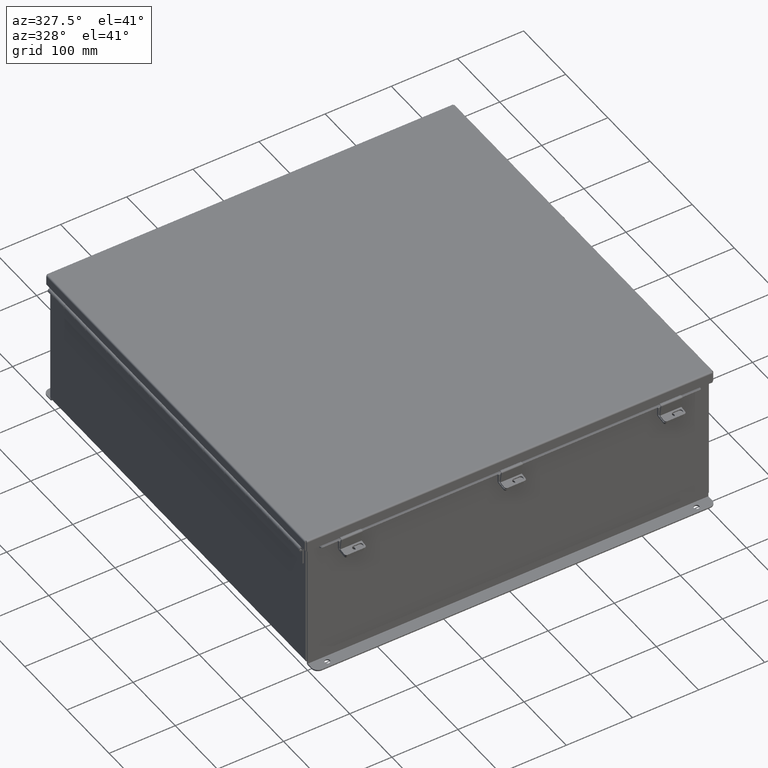
[diagram: clean part render]
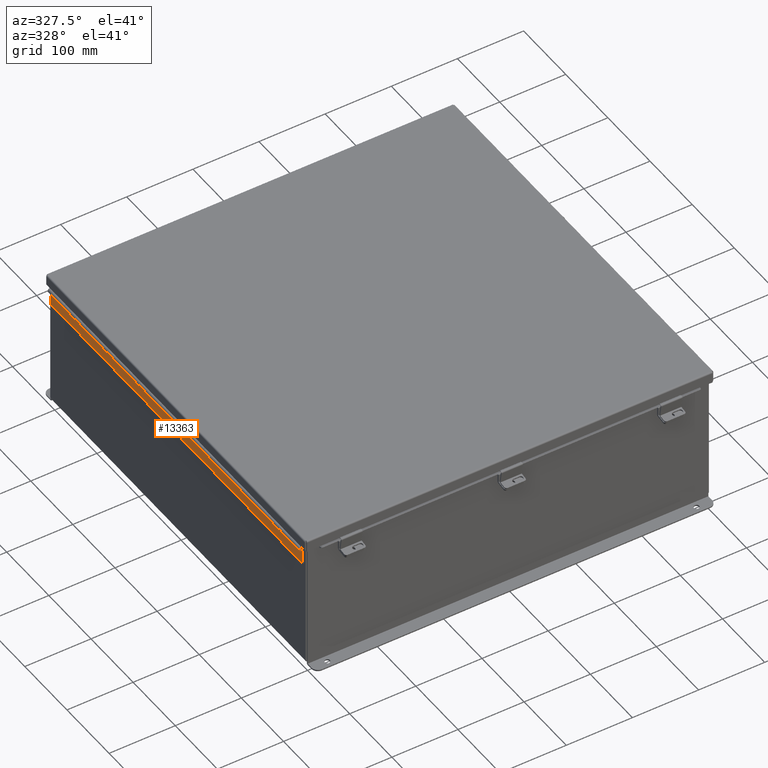
[diagram: same view with one face highlighted and labeled with its STEP entity id]
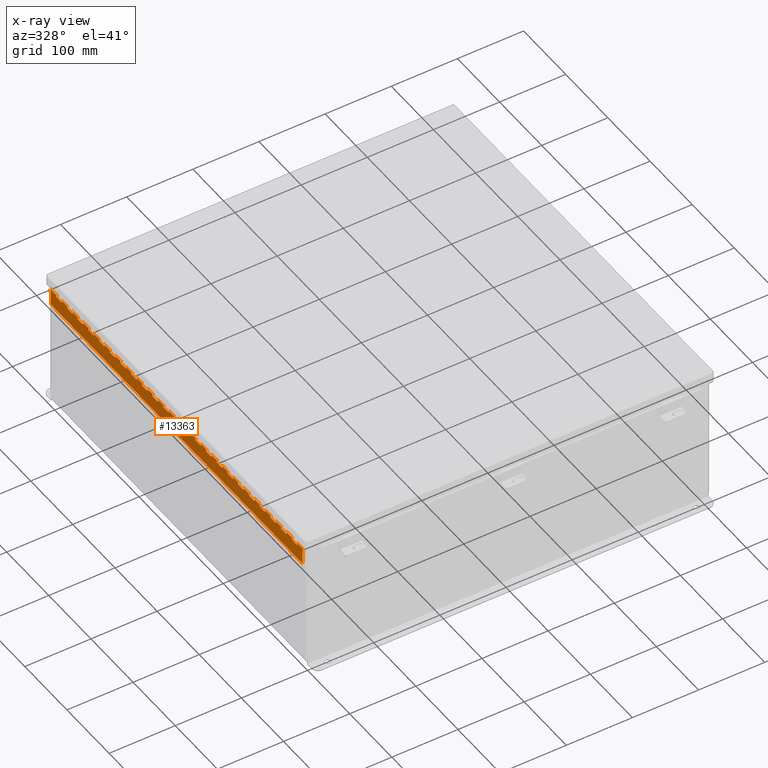
[diagram: x-ray of the same camera — body ghosted, the highlighted face saturated]
A machine part, auxiliary view. The second image highlights one B-rep face of the part: STEP entity #13363.
The next image is the same camera in x-ray: the body ghosted, the highlighted face saturated — about 0% of this face is hidden behind the body in this view.
In plain terms, the highlighted planar face has unit normal (1, -0, 0).
Its self-contained STEP definition (entity closure, byte-faithful):
#25 = LINE ( 'NONE', #8371, #5733 ) ;
#74 = VECTOR ( 'NONE', #21235, 39.37007874015748100 ) ;
#87 = CARTESIAN_POINT ( 'NONE',  ( 0.2730000000000000200, 16.49999999999999300, 0.0000000000000000000 ) ) ;
#110 = VERTEX_POINT ( 'NONE', #19727 ) ;
#141 = ORIENTED_EDGE ( 'NONE', *, *, #10956, .F. ) ;
#153 = EDGE_CURVE ( 'NONE', #23630, #15755, #12461, .T. ) ;
#179 = DIRECTION ( 'NONE',  ( -1.000000000000000000, 0.0000000000000000000, 0.0000000000000000000 ) ) ;
#237 = VERTEX_POINT ( 'NONE', #8559 ) ;
#247 = LINE ( 'NONE', #23125, #15599 ) ;
#252 = CARTESIAN_POINT ( 'NONE',  ( 0.1365000000000000100, 9.499999999999992900, -1.707404996040164500E-017 ) ) ;
#304 = EDGE_CURVE ( 'NONE', #22671, #3027, #10045, .T. ) ;
#333 = EDGE_CURVE ( 'NONE', #10372, #11980, #19064, .T. ) ;
#375 = ORIENTED_EDGE ( 'NONE', *, *, #23455, .T. ) ;
#381 = DIRECTION ( 'NONE',  ( -1.000000000000000000, 0.0000000000000000000, 0.0000000000000000000 ) ) ;
#389 = ORIENTED_EDGE ( 'NONE', *, *, #20321, .F. ) ;
#393 = CARTESIAN_POINT ( 'NONE',  ( 0.1365000000000000100, 20.49999999999999300, -1.707404996040164500E-017 ) ) ;
#501 = ORIENTED_EDGE ( 'NONE', *, *, #23640, .T. ) ;
#537 = CARTESIAN_POINT ( 'NONE',  ( 0.2730000000000000200, -19.00000000000000000, 0.0000000000000000000 ) ) ;
#573 = CARTESIAN_POINT ( 'NONE',  ( 0.0000000000000000000, 4.499999999999992000, 0.0000000000000000000 ) ) ;
#586 = LINE ( 'NONE', #7076, #20471 ) ;
#588 = VERTEX_POINT ( 'NONE', #11405 ) ;
#670 = DIRECTION ( 'NONE',  ( 0.0000000000000000000, 1.000000000000000000, 0.0000000000000000000 ) ) ;
#698 = DIRECTION ( 'NONE',  ( -1.000000000000000000, 0.0000000000000000000, 0.0000000000000000000 ) ) ;
#711 = EDGE_CURVE ( 'NONE', #18981, #16627, #11838, .T. ) ;
#732 = CARTESIAN_POINT ( 'NONE',  ( 0.1365000000000000100, 10.99999999999999500, -1.707404996040164500E-017 ) ) ;
#888 = EDGE_CURVE ( 'NONE', #19930, #18981, #25, .T. ) ;
#892 = EDGE_CURVE ( 'NONE', #20535, #2549, #24397, .T. ) ;
#902 = ORIENTED_EDGE ( 'NONE', *, *, #18829, .F. ) ;
#918 = LINE ( 'NONE', #17570, #6040 ) ;
#923 = VERTEX_POINT ( 'NONE', #16159 ) ;
#926 = VERTEX_POINT ( 'NONE', #20043 ) ;
#929 = VECTOR ( 'NONE', #3287, 39.37007874015748100 ) ;
#960 = VECTOR ( 'NONE', #4931, 39.37007874015748100 ) ;
#1062 = EDGE_CURVE ( 'NONE', #2897, #22134, #11184, .T. ) ;
#1075 = EDGE_CURVE ( 'NONE', #21488, #20535, #10570, .T. ) ;
#1106 = CARTESIAN_POINT ( 'NONE',  ( 0.1365000000000000100, 16.99999999999999300, -1.707404996040164500E-017 ) ) ;
#1115 = CARTESIAN_POINT ( 'NONE',  ( 0.0000000000000000000, 15.49999999999999300, 0.0000000000000000000 ) ) ;
#1242 = DIRECTION ( 'NONE',  ( -1.000000000000000000, 0.0000000000000000000, 0.0000000000000000000 ) ) ;
#1251 = EDGE_CURVE ( 'NONE', #15755, #8227, #1816, .T. ) ;
#1265 = DIRECTION ( 'NONE',  ( -1.000000000000000000, 0.0000000000000000000, 0.0000000000000000000 ) ) ;
#1310 = CARTESIAN_POINT ( 'NONE',  ( 0.1365000000000000100, 6.999999999999993800, -1.707404996040164500E-017 ) ) ;
#1359 = DIRECTION ( 'NONE',  ( -1.000000000000000000, 0.0000000000000000000, 0.0000000000000000000 ) ) ;
#1384 = DIRECTION ( 'NONE',  ( 0.0000000000000000000, 1.000000000000000000, 0.0000000000000000000 ) ) ;
#1418 = VERTEX_POINT ( 'NONE', #11958 ) ;
#1484 = LINE ( 'NONE', #6299, #11154 ) ;
#1493 = EDGE_CURVE ( 'NONE', #4435, #6680, #11749, .T. ) ;
#1496 = DIRECTION ( 'NONE',  ( -1.000000000000000000, 0.0000000000000000000, 0.0000000000000000000 ) ) ;
#1566 = LINE ( 'NONE', #11498, #6678 ) ;
#1582 = DIRECTION ( 'NONE',  ( 0.0000000000000000000, 1.000000000000000000, 0.0000000000000000000 ) ) ;
#1584 = VERTEX_POINT ( 'NONE', #4445 ) ;
#1586 = ORIENTED_EDGE ( 'NONE', *, *, #304, .T. ) ;
#1631 = LINE ( 'NONE', #21552, #21502 ) ;
#1632 = ORIENTED_EDGE ( 'NONE', *, *, #8918, .F. ) ;
#1648 = ORIENTED_EDGE ( 'NONE', *, *, #9316, .F. ) ;
#1650 = LINE ( 'NONE', #19793, #20923 ) ;
#1666 = CARTESIAN_POINT ( 'NONE',  ( 0.0000000000000000000, 3.999999999999994700, 0.0000000000000000000 ) ) ;
#1702 = LINE ( 'NONE', #20692, #16432 ) ;
#1749 = DIRECTION ( 'NONE',  ( -1.000000000000000000, 0.0000000000000000000, 0.0000000000000000000 ) ) ;
#1816 = LINE ( 'NONE', #1862, #16542 ) ;
#1862 = CARTESIAN_POINT ( 'NONE',  ( 0.1365000000000000100, 0.0000000000000000000, -1.707404996040164500E-017 ) ) ;
#1898 = CARTESIAN_POINT ( 'NONE',  ( 0.2730000000000000200, 1.999999999999994000, 0.0000000000000000000 ) ) ;
#1982 = LINE ( 'NONE', #537, #23067 ) ;
#1990 = VECTOR ( 'NONE', #381, 39.37007874015748100 ) ;
#2082 = DIRECTION ( 'NONE',  ( -1.000000000000000000, 0.0000000000000000000, 0.0000000000000000000 ) ) ;
#2133 = DIRECTION ( 'NONE',  ( 0.0000000000000000000, 1.000000000000000000, 0.0000000000000000000 ) ) ;
#2135 = CARTESIAN_POINT ( 'NONE',  ( 0.0000000000000000000, 21.99999999999999600, 0.0000000000000000000 ) ) ;
#2148 = ORIENTED_EDGE ( 'NONE', *, *, #3921, .F. ) ;
#2181 = LINE ( 'NONE', #22273, #960 ) ;
#2189 = ORIENTED_EDGE ( 'NONE', *, *, #8547, .T. ) ;
#2215 = VECTOR ( 'NONE', #8381, 39.37007874015748100 ) ;
#2272 = DIRECTION ( 'NONE',  ( 0.0000000000000000000, 1.000000000000000000, 0.0000000000000000000 ) ) ;
#2377 = VECTOR ( 'NONE', #1242, 39.37007874015748100 ) ;
#2453 = LINE ( 'NONE', #21044, #12102 ) ;
#2461 = DIRECTION ( 'NONE',  ( 0.0000000000000000000, 1.000000000000000000, 0.0000000000000000000 ) ) ;
#2539 = CARTESIAN_POINT ( 'NONE',  ( 0.1365000000000000100, 3.499999999999992900, -1.707404996040164500E-017 ) ) ;
#2549 = VERTEX_POINT ( 'NONE', #4598 ) ;
#2550 = EDGE_CURVE ( 'NONE', #18948, #21488, #21331, .T. ) ;
#2553 = VECTOR ( 'NONE', #7376, 39.37007874015748100 ) ;
#2571 = LINE ( 'NONE', #11927, #1990 ) ;
#2599 = DIRECTION ( 'NONE',  ( -1.000000000000000000, 0.0000000000000000000, 0.0000000000000000000 ) ) ;
#2602 = ORIENTED_EDGE ( 'NONE', *, *, #19403, .T. ) ;
#2622 = DIRECTION ( 'NONE',  ( 0.0000000000000000000, 1.000000000000000000, 0.0000000000000000000 ) ) ;
#2732 = CARTESIAN_POINT ( 'NONE',  ( 0.2730000000000000200, 8.499999999999992900, 0.0000000000000000000 ) ) ;
#2765 = LINE ( 'NONE', #15644, #22669 ) ;
#2770 = DIRECTION ( 'NONE',  ( -1.000000000000000000, 0.0000000000000000000, 0.0000000000000000000 ) ) ;
#2784 = VERTEX_POINT ( 'NONE', #17123 ) ;
#2850 = CARTESIAN_POINT ( 'NONE',  ( 0.2730000000000000200, 3.999999999999994700, 0.0000000000000000000 ) ) ;
#2897 = VERTEX_POINT ( 'NONE', #19493 ) ;
#2905 = DIRECTION ( 'NONE',  ( 0.0000000000000000000, 1.000000000000000000, 0.0000000000000000000 ) ) ;
#2937 = CARTESIAN_POINT ( 'NONE',  ( 0.1365000000000000100, 0.0000000000000000000, -1.707404996040164500E-017 ) ) ;
#2958 = CARTESIAN_POINT ( 'NONE',  ( 0.1365000000000000100, 5.499999999999992900, -1.707404996040164500E-017 ) ) ;
#2959 = CARTESIAN_POINT ( 'NONE',  ( 0.0000000000000000000, 15.99999999999999500, 0.0000000000000000000 ) ) ;
#2961 = EDGE_CURVE ( 'NONE', #12027, #22134, #23119, .T. ) ;
#2966 = EDGE_CURVE ( 'NONE', #4473, #4435, #12877, .T. ) ;
#2973 = VERTEX_POINT ( 'NONE', #17138 ) ;
#2990 = DIRECTION ( 'NONE',  ( 0.0000000000000000000, 1.000000000000000000, 0.0000000000000000000 ) ) ;
#3027 = VERTEX_POINT ( 'NONE', #3934 ) ;
#3060 = VECTOR ( 'NONE', #4067, 39.37007874015748100 ) ;
#3167 = EDGE_CURVE ( 'NONE', #2784, #22640, #17659, .T. ) ;
#3181 = LINE ( 'NONE', #9409, #13433 ) ;
#3186 = VECTOR ( 'NONE', #19243, 39.37007874015748100 ) ;
#3191 = CARTESIAN_POINT ( 'NONE',  ( 0.2730000000000000200, -9.000000000000000000, 0.0000000000000000000 ) ) ;
#3211 = VERTEX_POINT ( 'NONE', #23702 ) ;
#3226 = VECTOR ( 'NONE', #10485, 39.37007874015748100 ) ;
#3275 = DIRECTION ( 'NONE',  ( -1.000000000000000000, 0.0000000000000000000, 0.0000000000000000000 ) ) ;
#3287 = DIRECTION ( 'NONE',  ( -1.000000000000000000, 0.0000000000000000000, 0.0000000000000000000 ) ) ;
#3321 = ORIENTED_EDGE ( 'NONE', *, *, #18639, .F. ) ;
#3333 = EDGE_CURVE ( 'NONE', #3211, #8857, #4415, .T. ) ;
#3346 = CARTESIAN_POINT ( 'NONE',  ( 0.0000000000000000000, 0.0000000000000000000, 0.0000000000000000000 ) ) ;
#3359 = VECTOR ( 'NONE', #698, 39.37007874015748100 ) ;
#3440 = VECTOR ( 'NONE', #8852, 39.37007874015748100 ) ;
#3464 = CARTESIAN_POINT ( 'NONE',  ( 0.2730000000000000200, 16.99999999999999300, 0.0000000000000000000 ) ) ;
#3520 = VERTEX_POINT ( 'NONE', #5425 ) ;
#3534 = DIRECTION ( 'NONE',  ( 0.0000000000000000000, 1.000000000000000000, 0.0000000000000000000 ) ) ;
#3601 = LINE ( 'NONE', #16070, #13260 ) ;
#3609 = CARTESIAN_POINT ( 'NONE',  ( 0.2730000000000000200, 19.99999999999999300, 0.0000000000000000000 ) ) ;
#3650 = ORIENTED_EDGE ( 'NONE', *, *, #7990, .F. ) ;
#3685 = LINE ( 'NONE', #4836, #23560 ) ;
#3686 = CARTESIAN_POINT ( 'NONE',  ( 0.2730000000000000200, -10.00000000000000000, 0.0000000000000000000 ) ) ;
#3687 = ORIENTED_EDGE ( 'NONE', *, *, #17496, .F. ) ;
#3692 = EDGE_CURVE ( 'NONE', #6680, #9956, #1702, .T. ) ;
#3709 = VECTOR ( 'NONE', #4914, 39.37007874015748100 ) ;
#3713 = VECTOR ( 'NONE', #13030, 39.37007874015748100 ) ;
#3717 = LINE ( 'NONE', #14458, #12755 ) ;
#3809 = VECTOR ( 'NONE', #22113, 39.37007874015748100 ) ;
#3838 = DIRECTION ( 'NONE',  ( 0.0000000000000000000, 1.000000000000000000, 0.0000000000000000000 ) ) ;
#3848 = LINE ( 'NONE', #22949, #10488 ) ;
#3878 = EDGE_CURVE ( 'NONE', #6974, #21388, #13436, .T. ) ;
#3921 = EDGE_CURVE ( 'NONE', #7427, #7378, #12828, .T. ) ;
#3928 = ORIENTED_EDGE ( 'NONE', *, *, #711, .F. ) ;
#3930 = EDGE_LOOP ( 'NONE', ( #23448, #3687, #2602, #375, #501, #21585, #18262, #389, #19248, #12678, #12831, #18343, #1586, #5116, #10321, #9852, #12124, #21883, #7748, #24874, #12743, #5993, #3928, #19446, #15327, #12459, #12345, #16909, #21578, #13621, #9239, #9836, #21283, #9132, #3321, #902, #16413, #16816, #19060, #24067, #19016, #23084, #10000, #5592, #11932, #23371, #6087, #24669, #12656, #8304, #4181, #20572, #15326, #15394, #20044, #6976, #22467, #23065, #19744, #17810, #6924, #14139, #24522, #15305, #2189, #17420, #2148, #11903, #23799, #141, #14884, #17295, #19900, #22558, #9620, #1632, #21429, #3650, #13799, #3960, #18498, #6028, #1648, #5537, #18195, #21408, #4766, #11133, #12756, #22328, #5150, #5646, #5451, #24502, #17150, #17876 ) ) ;
#3934 = CARTESIAN_POINT ( 'NONE',  ( 0.1365000000000000100, 21.49999999999999300, -1.707404996040164500E-017 ) ) ;
#3960 = ORIENTED_EDGE ( 'NONE', *, *, #5745, .F. ) ;
#4057 = VECTOR ( 'NONE', #15419, 39.37007874015748100 ) ;
#4067 = DIRECTION ( 'NONE',  ( -1.000000000000000000, 0.0000000000000000000, 0.0000000000000000000 ) ) ;
#4181 = ORIENTED_EDGE ( 'NONE', *, *, #8704, .F. ) ;
#4261 = LINE ( 'NONE', #14000, #19015 ) ;
#4289 = LINE ( 'NONE', #23393, #24158 ) ;
#4355 = CARTESIAN_POINT ( 'NONE',  ( 0.0000000000000000000, 1.499999999999992200, 0.0000000000000000000 ) ) ;
#4392 = EDGE_CURVE ( 'NONE', #110, #11980, #19725, .T. ) ;
#4400 = CARTESIAN_POINT ( 'NONE',  ( 0.2730000000000000200, 7.999999999999993800, 0.0000000000000000000 ) ) ;
#4415 = LINE ( 'NONE', #4854, #3809 ) ;
#4435 = VERTEX_POINT ( 'NONE', #20662 ) ;
#4436 = EDGE_CURVE ( 'NONE', #4473, #8857, #12800, .T. ) ;
#4445 = CARTESIAN_POINT ( 'NONE',  ( 0.1365000000000000100, 10.49999999999999300, -1.707404996040164500E-017 ) ) ;
#4473 = VERTEX_POINT ( 'NONE', #13253 ) ;
#4598 = CARTESIAN_POINT ( 'NONE',  ( 0.1365000000000000100, 17.49999999999999300, -1.707404996040164500E-017 ) ) ;
#4608 = EDGE_CURVE ( 'NONE', #16090, #14974, #20012, .T. ) ;
#4640 = EDGE_CURVE ( 'NONE', #588, #22640, #23337, .T. ) ;
#4643 = CARTESIAN_POINT ( 'NONE',  ( 0.2730000000000000200, 11.49999999999999300, 0.0000000000000000000 ) ) ;
#4719 = VECTOR ( 'NONE', #20523, 39.37007874015748100 ) ;
#4726 = VECTOR ( 'NONE', #12022, 39.37007874015748100 ) ;
#4732 = CARTESIAN_POINT ( 'NONE',  ( 0.2730000000000000200, 17.49999999999999300, 0.0000000000000000000 ) ) ;
#4759 = DIRECTION ( 'NONE',  ( -1.000000000000000000, 0.0000000000000000000, 0.0000000000000000000 ) ) ;
#4760 = EDGE_CURVE ( 'NONE', #2897, #5134, #1650, .T. ) ;
#4766 = ORIENTED_EDGE ( 'NONE', *, *, #7673, .F. ) ;
#4770 = LINE ( 'NONE', #573, #19528 ) ;
#4793 = LINE ( 'NONE', #19780, #24649 ) ;
#4830 = VERTEX_POINT ( 'NONE', #12390 ) ;
#4836 = CARTESIAN_POINT ( 'NONE',  ( 0.1365000000000000100, 0.0000000000000000000, -1.707404996040164500E-017 ) ) ;
#4843 = LINE ( 'NONE', #6137, #15075 ) ;
#4848 = CARTESIAN_POINT ( 'NONE',  ( 0.2730000000000000200, 10.49999999999999300, 0.0000000000000000000 ) ) ;
#4854 = CARTESIAN_POINT ( 'NONE',  ( 0.1365000000000000100, 0.0000000000000000000, -1.707404996040164500E-017 ) ) ;
#4867 = DIRECTION ( 'NONE',  ( 0.0000000000000000000, 1.000000000000000000, 0.0000000000000000000 ) ) ;
#4893 = DIRECTION ( 'NONE',  ( 0.0000000000000000000, 1.000000000000000000, 0.0000000000000000000 ) ) ;
#4914 = DIRECTION ( 'NONE',  ( -1.000000000000000000, 0.0000000000000000000, 0.0000000000000000000 ) ) ;
#4931 = DIRECTION ( 'NONE',  ( -1.000000000000000000, 0.0000000000000000000, 0.0000000000000000000 ) ) ;
#4984 = VERTEX_POINT ( 'NONE', #18596 ) ;
#5104 = CARTESIAN_POINT ( 'NONE',  ( 0.1365000000000000100, 9.999999999999994700, -1.707404996040164500E-017 ) ) ;
#5116 = ORIENTED_EDGE ( 'NONE', *, *, #7012, .F. ) ;
#5128 = VECTOR ( 'NONE', #9603, 39.37007874015748100 ) ;
#5134 = VERTEX_POINT ( 'NONE', #8552 ) ;
#5150 = ORIENTED_EDGE ( 'NONE', *, *, #14828, .F. ) ;
#5182 = LINE ( 'NONE', #9701, #74 ) ;
#5295 = VERTEX_POINT ( 'NONE', #16670 ) ;
#5319 = CARTESIAN_POINT ( 'NONE',  ( 0.2730000000000000200, 15.99999999999999500, 0.0000000000000000000 ) ) ;
#5348 = VERTEX_POINT ( 'NONE', #5319 ) ;
#5354 = VECTOR ( 'NONE', #21938, 39.37007874015748100 ) ;
#5392 = VERTEX_POINT ( 'NONE', #13159 ) ;
#5425 = CARTESIAN_POINT ( 'NONE',  ( 0.1365000000000000100, 2.999999999999993300, -1.707404996040164500E-017 ) ) ;
#5451 = ORIENTED_EDGE ( 'NONE', *, *, #3167, .T. ) ;
#5464 = CARTESIAN_POINT ( 'NONE',  ( 0.2730000000000000200, -21.00000000000000000, 0.0000000000000000000 ) ) ;
#5537 = ORIENTED_EDGE ( 'NONE', *, *, #12071, .F. ) ;
#5592 = ORIENTED_EDGE ( 'NONE', *, *, #5908, .F. ) ;
#5623 = DIRECTION ( 'NONE',  ( 0.0000000000000000000, 1.000000000000000000, 0.0000000000000000000 ) ) ;
#5646 = ORIENTED_EDGE ( 'NONE', *, *, #21536, .F. ) ;
#5652 = VERTEX_POINT ( 'NONE', #6226 ) ;
#5733 = VECTOR ( 'NONE', #10298, 39.37007874015748100 ) ;
#5743 = CARTESIAN_POINT ( 'NONE',  ( 0.0000000000000000000, 20.99999999999999600, 0.0000000000000000000 ) ) ;
#5745 = EDGE_CURVE ( 'NONE', #1418, #17919, #15473, .T. ) ;
#5803 = CARTESIAN_POINT ( 'NONE',  ( 0.1365000000000000100, 2.499999999999991600, -1.707404996040164500E-017 ) ) ;
#5869 = EDGE_CURVE ( 'NONE', #5134, #110, #8576, .T. ) ;
#5908 = EDGE_CURVE ( 'NONE', #15066, #11922, #22731, .T. ) ;
#5986 = CARTESIAN_POINT ( 'NONE',  ( 0.0000000000000000000, 18.99999999999999300, 0.0000000000000000000 ) ) ;
#5993 = ORIENTED_EDGE ( 'NONE', *, *, #19947, .F. ) ;
#6011 = CARTESIAN_POINT ( 'NONE',  ( 0.1365000000000000100, 0.0000000000000000000, -1.707404996040164500E-017 ) ) ;
#6028 = ORIENTED_EDGE ( 'NONE', *, *, #11719, .F. ) ;
#6040 = VECTOR ( 'NONE', #8016, 39.37007874015748100 ) ;
#6087 = ORIENTED_EDGE ( 'NONE', *, *, #1493, .F. ) ;
#6106 = VECTOR ( 'NONE', #4759, 39.37007874015748100 ) ;
#6137 = CARTESIAN_POINT ( 'NONE',  ( 0.2730000000000000200, -15.00000000000000000, 0.0000000000000000000 ) ) ;
#6226 = CARTESIAN_POINT ( 'NONE',  ( 0.2730000000000000200, 19.49999999999999300, 0.0000000000000000000 ) ) ;
#6292 = DIRECTION ( 'NONE',  ( 0.0000000000000000000, 1.000000000000000000, 0.0000000000000000000 ) ) ;
#6299 = CARTESIAN_POINT ( 'NONE',  ( 0.2730000000000000200, -17.00000000000000000, 0.0000000000000000000 ) ) ;
#6491 = EDGE_CURVE ( 'NONE', #16090, #24471, #7336, .T. ) ;
#6493 = CARTESIAN_POINT ( 'NONE',  ( 0.0000000000000000000, 5.999999999999994700, 0.0000000000000000000 ) ) ;
#6528 = CARTESIAN_POINT ( 'NONE',  ( 0.2730000000000000200, -5.999999999999999100, 0.0000000000000000000 ) ) ;
#6580 = CARTESIAN_POINT ( 'NONE',  ( 0.1365000000000000100, 0.0000000000000000000, -1.707404996040164500E-017 ) ) ;
#6594 = VERTEX_POINT ( 'NONE', #24356 ) ;
#6606 = EDGE_CURVE ( 'NONE', #18948, #8417, #8842, .T. ) ;
#6646 = CARTESIAN_POINT ( 'NONE',  ( 0.0000000000000000000, 8.499999999999992900, 0.0000000000000000000 ) ) ;
#6678 = VECTOR ( 'NONE', #23013, 39.37007874015748100 ) ;
#6680 = VERTEX_POINT ( 'NONE', #9755 ) ;
#6749 = PLANE ( 'NONE',  #14903 ) ;
#6768 = VECTOR ( 'NONE', #20125, 39.37007874015748100 ) ;
#6781 = VERTEX_POINT ( 'NONE', #393 ) ;
#6867 = EDGE_CURVE ( 'NONE', #17919, #4830, #19948, .T. ) ;
#6908 = VERTEX_POINT ( 'NONE', #2732 ) ;
#6924 = ORIENTED_EDGE ( 'NONE', *, *, #6491, .T. ) ;
#6945 = LINE ( 'NONE', #11408, #15958 ) ;
#6974 = VERTEX_POINT ( 'NONE', #4848 ) ;
#6976 = ORIENTED_EDGE ( 'NONE', *, *, #3878, .F. ) ;
#6988 = VECTOR ( 'NONE', #21172, 39.37007874015748100 ) ;
#7012 = EDGE_CURVE ( 'NONE', #24490, #3027, #21452, .T. ) ;
#7016 = CARTESIAN_POINT ( 'NONE',  ( 0.1365000000000000100, 18.99999999999999300, -1.707404996040164500E-017 ) ) ;
#7021 = EDGE_CURVE ( 'NONE', #14974, #17797, #2181, .T. ) ;
#7076 = CARTESIAN_POINT ( 'NONE',  ( 0.0000000000000000000, 13.49999999999999100, 0.0000000000000000000 ) ) ;
#7090 = CARTESIAN_POINT ( 'NONE',  ( 0.0000000000000000000, 16.99999999999999300, 0.0000000000000000000 ) ) ;
#7137 = CARTESIAN_POINT ( 'NONE',  ( 1.136500000000000100, 0.0000000000000000000, 0.0000000000000000000 ) ) ;
#7154 = VECTOR ( 'NONE', #11378, 39.37007874015748100 ) ;
#7192 = LINE ( 'NONE', #1666, #21937 ) ;
#7198 = EDGE_CURVE ( 'NONE', #10605, #24490, #12712, .T. ) ;
#7227 = CARTESIAN_POINT ( 'NONE',  ( 0.0000000000000000000, 22.49999999999999300, 0.0000000000000000000 ) ) ;
#7336 = LINE ( 'NONE', #18221, #6106 ) ;
#7366 = VECTOR ( 'NONE', #22472, 39.37007874015748100 ) ;
#7376 = DIRECTION ( 'NONE',  ( -1.000000000000000000, 0.0000000000000000000, 0.0000000000000000000 ) ) ;
#7378 = VERTEX_POINT ( 'NONE', #8202 ) ;
#7388 = DIRECTION ( 'NONE',  ( 0.0000000000000000000, 1.000000000000000000, 0.0000000000000000000 ) ) ;
#7427 = VERTEX_POINT ( 'NONE', #4400 ) ;
#7438 = VERTEX_POINT ( 'NONE', #2539 ) ;
#7444 = EDGE_CURVE ( 'NONE', #7378, #9992, #12401, .T. ) ;
#7448 = EDGE_CURVE ( 'NONE', #13959, #19195, #23245, .T. ) ;
#7473 = VECTOR ( 'NONE', #11837, 39.37007874015748100 ) ;
#7484 = EDGE_CURVE ( 'NONE', #3520, #7438, #21426, .T. ) ;
#7587 = EDGE_CURVE ( 'NONE', #18546, #16601, #19602, .T. ) ;
#7594 = DIRECTION ( 'NONE',  ( -1.000000000000000000, 0.0000000000000000000, 0.0000000000000000000 ) ) ;
#7602 = DIRECTION ( 'NONE',  ( 0.0000000000000000000, 1.000000000000000000, 0.0000000000000000000 ) ) ;
#7673 = EDGE_CURVE ( 'NONE', #18306, #3520, #8178, .T. ) ;
#7745 = CARTESIAN_POINT ( 'NONE',  ( 0.2730000000000000200, -11.99999999999999800, 0.0000000000000000000 ) ) ;
#7748 = ORIENTED_EDGE ( 'NONE', *, *, #24544, .F. ) ;
#7795 = CARTESIAN_POINT ( 'NONE',  ( 0.2730000000000000200, 2.999999999999993300, 0.0000000000000000000 ) ) ;
#7810 = EDGE_CURVE ( 'NONE', #2973, #21346, #14778, .T. ) ;
#7823 = DIRECTION ( 'NONE',  ( 0.0000000000000000000, 1.000000000000000000, 0.0000000000000000000 ) ) ;
#7845 = VERTEX_POINT ( 'NONE', #15316 ) ;
#7878 = CARTESIAN_POINT ( 'NONE',  ( 0.0000000000000000000, 19.49999999999999300, 0.0000000000000000000 ) ) ;
#7915 = LINE ( 'NONE', #17738, #12422 ) ;
#7942 = DIRECTION ( 'NONE',  ( -1.000000000000000000, 0.0000000000000000000, 0.0000000000000000000 ) ) ;
#7967 = CARTESIAN_POINT ( 'NONE',  ( 0.1365000000000000100, 0.4999999999999930100, -1.707404996040164500E-017 ) ) ;
#7976 = CARTESIAN_POINT ( 'NONE',  ( 0.0000000000000000000, 8.999999999999994700, 0.0000000000000000000 ) ) ;
#7990 = EDGE_CURVE ( 'NONE', #4830, #21346, #918, .T. ) ;
#7996 = EDGE_CURVE ( 'NONE', #17863, #7427, #4843, .T. ) ;
#8016 = DIRECTION ( 'NONE',  ( 0.0000000000000000000, 1.000000000000000000, 0.0000000000000000000 ) ) ;
#8027 = LINE ( 'NONE', #18887, #18238 ) ;
#8072 = LINE ( 'NONE', #6011, #23418 ) ;
#8092 = CARTESIAN_POINT ( 'NONE',  ( 0.2730000000000000200, 17.99999999999999300, 0.0000000000000000000 ) ) ;
#8174 = EDGE_CURVE ( 'NONE', #17863, #4984, #6945, .T. ) ;
#8178 = LINE ( 'NONE', #24408, #17780 ) ;
#8186 = CARTESIAN_POINT ( 'NONE',  ( 0.1365000000000000100, 16.49999999999999300, -1.707404996040164500E-017 ) ) ;
#8202 = CARTESIAN_POINT ( 'NONE',  ( 0.1365000000000000100, 7.999999999999993800, -1.707404996040164500E-017 ) ) ;
#8217 = VECTOR ( 'NONE', #21629, 39.37007874015748100 ) ;
#8227 = VERTEX_POINT ( 'NONE', #17256 ) ;
#8276 = CARTESIAN_POINT ( 'NONE',  ( 0.2730000000000000200, 6.499999999999992000, 0.0000000000000000000 ) ) ;
#8304 = ORIENTED_EDGE ( 'NONE', *, *, #3333, .F. ) ;
#8319 = EDGE_CURVE ( 'NONE', #11922, #12027, #9059, .T. ) ;
#8360 = LINE ( 'NONE', #14332, #3226 ) ;
#8371 = CARTESIAN_POINT ( 'NONE',  ( 0.2730000000000000200, -4.000000000000000000, 0.0000000000000000000 ) ) ;
#8381 = DIRECTION ( 'NONE',  ( -1.000000000000000000, 0.0000000000000000000, 0.0000000000000000000 ) ) ;
#8417 = VERTEX_POINT ( 'NONE', #8186 ) ;
#8450 = DIRECTION ( 'NONE',  ( 0.0000000000000000000, 1.000000000000000000, 0.0000000000000000000 ) ) ;
#8547 = EDGE_CURVE ( 'NONE', #6908, #9992, #18963, .T. ) ;
#8552 = CARTESIAN_POINT ( 'NONE',  ( 0.2730000000000000200, 14.99999999999999500, 0.0000000000000000000 ) ) ;
#8559 = CARTESIAN_POINT ( 'NONE',  ( 0.1365000000000000100, 11.49999999999999300, -1.707404996040164500E-017 ) ) ;
#8576 = LINE ( 'NONE', #18329, #3440 ) ;
#8700 = EDGE_CURVE ( 'NONE', #15066, #9956, #586, .T. ) ;
#8704 = EDGE_CURVE ( 'NONE', #16601, #3211, #21080, .T. ) ;
#8707 = DIRECTION ( 'NONE',  ( 0.0000000000000000000, 0.0000000000000000000, -1.000000000000000000 ) ) ;
#8772 = VERTEX_POINT ( 'NONE', #5803 ) ;
#8842 = LINE ( 'NONE', #14956, #23571 ) ;
#8852 = DIRECTION ( 'NONE',  ( -1.000000000000000000, 0.0000000000000000000, 0.0000000000000000000 ) ) ;
#8856 = LINE ( 'NONE', #14394, #22998 ) ;
#8857 = VERTEX_POINT ( 'NONE', #23475 ) ;
#8918 = EDGE_CURVE ( 'NONE', #2973, #13959, #1484, .T. ) ;
#9033 = DIRECTION ( 'NONE',  ( -1.000000000000000000, 0.0000000000000000000, 0.0000000000000000000 ) ) ;
#9059 = LINE ( 'NONE', #23253, #18666 ) ;
#9132 = ORIENTED_EDGE ( 'NONE', *, *, #10759, .F. ) ;
#9173 = CARTESIAN_POINT ( 'NONE',  ( 0.0000000000000000000, 10.49999999999999300, 0.0000000000000000000 ) ) ;
#9192 = LINE ( 'NONE', #2959, #17297 ) ;
#9234 = LINE ( 'NONE', #20755, #23964 ) ;
#9239 = ORIENTED_EDGE ( 'NONE', *, *, #1075, .F. ) ;
#9246 = EDGE_CURVE ( 'NONE', #6974, #1584, #23740, .T. ) ;
#9272 = VERTEX_POINT ( 'NONE', #11119 ) ;
#9279 = EDGE_CURVE ( 'NONE', #23199, #24471, #18619, .T. ) ;
#9316 = EDGE_CURVE ( 'NONE', #23780, #16098, #7192, .T. ) ;
#9409 = CARTESIAN_POINT ( 'NONE',  ( 0.0000000000000000000, 6.499999999999992000, 0.0000000000000000000 ) ) ;
#9424 = EDGE_CURVE ( 'NONE', #17797, #1584, #247, .T. ) ;
#9454 = LINE ( 'NONE', #3346, #3713 ) ;
#9494 = CARTESIAN_POINT ( 'NONE',  ( 0.1364999999999999000, 0.0000000000000000000, 0.0000000000000000000 ) ) ;
#9535 = CARTESIAN_POINT ( 'NONE',  ( 1.136500000000000100, 0.0000000000000000000, 0.0000000000000000000 ) ) ;
#9603 = DIRECTION ( 'NONE',  ( -1.000000000000000000, 0.0000000000000000000, 0.0000000000000000000 ) ) ;
#9620 = ORIENTED_EDGE ( 'NONE', *, *, #7448, .F. ) ;
#9645 = VERTEX_POINT ( 'NONE', #10278 ) ;
#9648 = EDGE_CURVE ( 'NONE', #6908, #13894, #16226, .T. ) ;
#9679 = EDGE_CURVE ( 'NONE', #11002, #7438, #4793, .T. ) ;
#9701 = CARTESIAN_POINT ( 'NONE',  ( 0.0000000000000000000, 17.49999999999999300, 0.0000000000000000000 ) ) ;
#9755 = CARTESIAN_POINT ( 'NONE',  ( 0.1365000000000000100, 12.99999999999999300, -1.707404996040164500E-017 ) ) ;
#9836 = ORIENTED_EDGE ( 'NONE', *, *, #2550, .F. ) ;
#9852 = ORIENTED_EDGE ( 'NONE', *, *, #13824, .F. ) ;
#9867 = VECTOR ( 'NONE', #3534, 39.37007874015748100 ) ;
#9870 = EDGE_CURVE ( 'NONE', #923, #588, #11441, .T. ) ;
#9942 = DIRECTION ( 'NONE',  ( 0.0000000000000000000, 1.000000000000000000, 0.0000000000000000000 ) ) ;
#9956 = VERTEX_POINT ( 'NONE', #11131 ) ;
#9992 = VERTEX_POINT ( 'NONE', #18913 ) ;
#10000 = ORIENTED_EDGE ( 'NONE', *, *, #8319, .F. ) ;
#10045 = LINE ( 'NONE', #10659, #3709 ) ;
#10074 = LINE ( 'NONE', #20885, #19700 ) ;
#10233 = EDGE_CURVE ( 'NONE', #1418, #10911, #4770, .T. ) ;
#10261 = LINE ( 'NONE', #15383, #5128 ) ;
#10278 = CARTESIAN_POINT ( 'NONE',  ( 0.2730000000000000200, 2.499999999999991600, 0.0000000000000000000 ) ) ;
#10281 = VERTEX_POINT ( 'NONE', #732 ) ;
#10298 = DIRECTION ( 'NONE',  ( 0.0000000000000000000, 1.000000000000000000, 0.0000000000000000000 ) ) ;
#10321 = ORIENTED_EDGE ( 'NONE', *, *, #7198, .F. ) ;
#10332 = DIRECTION ( 'NONE',  ( -1.000000000000000000, 0.0000000000000000000, 0.0000000000000000000 ) ) ;
#10370 = VECTOR ( 'NONE', #7602, 39.37007874015748100 ) ;
#10372 = VERTEX_POINT ( 'NONE', #24038 ) ;
#10375 = VECTOR ( 'NONE', #10447, 39.37007874015748100 ) ;
#10447 = DIRECTION ( 'NONE',  ( 0.0000000000000000000, 1.000000000000000000, 0.0000000000000000000 ) ) ;
#10485 = DIRECTION ( 'NONE',  ( 0.0000000000000000000, 1.000000000000000000, 0.0000000000000000000 ) ) ;
#10488 = VECTOR ( 'NONE', #24861, 39.37007874015748100 ) ;
#10494 = CARTESIAN_POINT ( 'NONE',  ( 0.2730000000000000200, 18.49999999999999300, 0.0000000000000000000 ) ) ;
#10570 = LINE ( 'NONE', #7090, #20179 ) ;
#10605 = VERTEX_POINT ( 'NONE', #11349 ) ;
#10612 = CARTESIAN_POINT ( 'NONE',  ( 0.1365000000000000100, 5.999999999999994700, -1.707404996040164500E-017 ) ) ;
#10616 = EDGE_CURVE ( 'NONE', #9645, #8772, #3848, .T. ) ;
#10659 = CARTESIAN_POINT ( 'NONE',  ( 0.0000000000000000000, 21.49999999999999300, 0.0000000000000000000 ) ) ;
#10702 = CARTESIAN_POINT ( 'NONE',  ( 0.2730000000000000200, 13.49999999999999100, 0.0000000000000000000 ) ) ;
#10756 = CARTESIAN_POINT ( 'NONE',  ( 0.1365000000000000100, 1.499999999999992200, -1.707404996040164500E-017 ) ) ;
#10759 = EDGE_CURVE ( 'NONE', #5295, #8417, #8072, .T. ) ;
#10766 = EDGE_CURVE ( 'NONE', #13894, #23199, #22833, .T. ) ;
#10823 = CARTESIAN_POINT ( 'NONE',  ( 0.2730000000000000200, 11.99999999999999500, 0.0000000000000000000 ) ) ;
#10831 = CARTESIAN_POINT ( 'NONE',  ( 0.2730000000000000200, 21.49999999999999300, 0.0000000000000000000 ) ) ;
#10843 = DIRECTION ( 'NONE',  ( 0.0000000000000000000, 1.000000000000000000, 0.0000000000000000000 ) ) ;
#10894 = CARTESIAN_POINT ( 'NONE',  ( 0.0000000000000000000, 14.49999999999999300, 0.0000000000000000000 ) ) ;
#10911 = VERTEX_POINT ( 'NONE', #21844 ) ;
#10956 = EDGE_CURVE ( 'NONE', #16031, #4984, #8360, .T. ) ;
#11002 = VERTEX_POINT ( 'NONE', #23967 ) ;
#11042 = LINE ( 'NONE', #12258, #20035 ) ;
#11119 = CARTESIAN_POINT ( 'NONE',  ( 0.2730000000000000200, 21.99999999999999600, 0.0000000000000000000 ) ) ;
#11131 = CARTESIAN_POINT ( 'NONE',  ( 0.1365000000000000100, 13.49999999999999100, -1.707404996040164500E-017 ) ) ;
#11133 = ORIENTED_EDGE ( 'NONE', *, *, #11725, .F. ) ;
#11144 = EDGE_CURVE ( 'NONE', #13537, #16031, #20073, .T. ) ;
#11154 = VECTOR ( 'NONE', #17814, 39.37007874015748100 ) ;
#11184 = LINE ( 'NONE', #10894, #11774 ) ;
#11185 = DIRECTION ( 'NONE',  ( 0.0000000000000000000, 1.000000000000000000, 0.0000000000000000000 ) ) ;
#11240 = VECTOR ( 'NONE', #2990, 39.37007874015748100 ) ;
#11349 = CARTESIAN_POINT ( 'NONE',  ( 0.2730000000000000200, 20.99999999999999600, 0.0000000000000000000 ) ) ;
#11378 = DIRECTION ( 'NONE',  ( 0.0000000000000000000, 1.000000000000000000, 0.0000000000000000000 ) ) ;
#11397 = DIRECTION ( 'NONE',  ( -1.000000000000000000, 0.0000000000000000000, 0.0000000000000000000 ) ) ;
#11405 = CARTESIAN_POINT ( 'NONE',  ( 0.1365000000000000100, 0.9999999999999947800, -1.707404996040164500E-017 ) ) ;
#11408 = CARTESIAN_POINT ( 'NONE',  ( 0.0000000000000000000, 7.499999999999992000, 0.0000000000000000000 ) ) ;
#11422 = VERTEX_POINT ( 'NONE', #15692 ) ;
#11441 = LINE ( 'NONE', #14707, #2377 ) ;
#11481 = DIRECTION ( 'NONE',  ( -5.812442539711198700E-018, 1.000000000000000000, 0.0000000000000000000 ) ) ;
#11498 = CARTESIAN_POINT ( 'NONE',  ( 0.0000000000000000000, 11.49999999999999300, 0.0000000000000000000 ) ) ;
#11610 = CARTESIAN_POINT ( 'NONE',  ( 0.1365000000000000100, 0.0000000000000000000, -1.707404996040164500E-017 ) ) ;
#11719 = EDGE_CURVE ( 'NONE', #16098, #10911, #9234, .T. ) ;
#11725 = EDGE_CURVE ( 'NONE', #9645, #18306, #8027, .T. ) ;
#11749 = LINE ( 'NONE', #11873, #16838 ) ;
#11774 = VECTOR ( 'NONE', #1265, 39.37007874015748100 ) ;
#11801 = LINE ( 'NONE', #18676, #929 ) ;
#11837 = DIRECTION ( 'NONE',  ( -1.000000000000000000, 0.0000000000000000000, 0.0000000000000000000 ) ) ;
#11838 = LINE ( 'NONE', #5986, #21466 ) ;
#11873 = CARTESIAN_POINT ( 'NONE',  ( 0.0000000000000000000, 12.99999999999999300, 0.0000000000000000000 ) ) ;
#11903 = ORIENTED_EDGE ( 'NONE', *, *, #7996, .F. ) ;
#11922 = VERTEX_POINT ( 'NONE', #13596 ) ;
#11927 = CARTESIAN_POINT ( 'NONE',  ( 0.0000000000000000000, 10.99999999999999500, 0.0000000000000000000 ) ) ;
#11932 = ORIENTED_EDGE ( 'NONE', *, *, #8700, .T. ) ;
#11958 = CARTESIAN_POINT ( 'NONE',  ( 0.2730000000000000200, 4.499999999999992000, 0.0000000000000000000 ) ) ;
#11963 = DIRECTION ( 'NONE',  ( -1.000000000000000000, -0.0000000000000000000, -0.0000000000000000000 ) ) ;
#11980 = VERTEX_POINT ( 'NONE', #21336 ) ;
#12001 = VERTEX_POINT ( 'NONE', #7967 ) ;
#12022 = DIRECTION ( 'NONE',  ( -1.000000000000000000, 0.0000000000000000000, 0.0000000000000000000 ) ) ;
#12027 = VERTEX_POINT ( 'NONE', #21581 ) ;
#12068 = DIRECTION ( 'NONE',  ( 0.0000000000000000000, 1.000000000000000000, 0.0000000000000000000 ) ) ;
#12071 = EDGE_CURVE ( 'NONE', #11002, #23780, #1982, .T. ) ;
#12102 = VECTOR ( 'NONE', #22976, 39.37007874015748100 ) ;
#12124 = ORIENTED_EDGE ( 'NONE', *, *, #21623, .T. ) ;
#12228 = VECTOR ( 'NONE', #2082, 39.37007874015748100 ) ;
#12251 = LINE ( 'NONE', #17806, #21881 ) ;
#12258 = CARTESIAN_POINT ( 'NONE',  ( 0.0000000000000000000, 0.4999999999999930100, 0.0000000000000000000 ) ) ;
#12345 = ORIENTED_EDGE ( 'NONE', *, *, #153, .F. ) ;
#12390 = CARTESIAN_POINT ( 'NONE',  ( 0.1365000000000000100, 4.999999999999993800, -1.707404996040164500E-017 ) ) ;
#12399 = CARTESIAN_POINT ( 'NONE',  ( 0.1365000000000000100, 0.0000000000000000000, -1.707404996040164500E-017 ) ) ;
#12401 = LINE ( 'NONE', #14159, #22645 ) ;
#12422 = VECTOR ( 'NONE', #23559, 39.37007874015748100 ) ;
#12459 = ORIENTED_EDGE ( 'NONE', *, *, #1251, .F. ) ;
#12461 = LINE ( 'NONE', #23760, #2215 ) ;
#12479 = CARTESIAN_POINT ( 'NONE',  ( 1.136499999999999800, 23.50000000000000000, 0.0000000000000000000 ) ) ;
#12500 = LINE ( 'NONE', #12399, #6768 ) ;
#12569 = VECTOR ( 'NONE', #17320, 39.37007874015748100 ) ;
#12656 = ORIENTED_EDGE ( 'NONE', *, *, #4436, .T. ) ;
#12678 = ORIENTED_EDGE ( 'NONE', *, *, #20892, .F. ) ;
#12712 = LINE ( 'NONE', #5743, #6988 ) ;
#12743 = ORIENTED_EDGE ( 'NONE', *, *, #21070, .T. ) ;
#12755 = VECTOR ( 'NONE', #20271, 39.37007874015748100 ) ;
#12756 = ORIENTED_EDGE ( 'NONE', *, *, #10616, .T. ) ;
#12800 = LINE ( 'NONE', #24595, #2553 ) ;
#12828 = LINE ( 'NONE', #13615, #12228 ) ;
#12831 = ORIENTED_EDGE ( 'NONE', *, *, #21074, .F. ) ;
#12877 = LINE ( 'NONE', #3686, #21909 ) ;
#12913 = VECTOR ( 'NONE', #1582, 39.37007874015748100 ) ;
#13027 = CARTESIAN_POINT ( 'NONE',  ( 0.1365000000000000100, 14.49999999999999300, -1.707404996040164500E-017 ) ) ;
#13030 = DIRECTION ( 'NONE',  ( 1.000000000000000000, 0.0000000000000000000, 0.0000000000000000000 ) ) ;
#13099 = CARTESIAN_POINT ( 'NONE',  ( 0.2730000000000000200, 9.499999999999992900, 0.0000000000000000000 ) ) ;
#13105 = CARTESIAN_POINT ( 'NONE',  ( 0.2730000000000000200, 4.999999999999993800, 0.0000000000000000000 ) ) ;
#13159 = CARTESIAN_POINT ( 'NONE',  ( 0.1365000000000000100, 23.50000000000000000, -1.707404996040164500E-017 ) ) ;
#13253 = CARTESIAN_POINT ( 'NONE',  ( 0.2730000000000000200, 12.49999999999999100, 0.0000000000000000000 ) ) ;
#13260 = VECTOR ( 'NONE', #17999, 39.37007874015748100 ) ;
#13316 = LINE ( 'NONE', #2135, #3060 ) ;
#13363 = ADVANCED_FACE ( 'NONE', ( #13950 ), #6749, .F. ) ;
#13373 = LINE ( 'NONE', #2937, #23006 ) ;
#13378 = EDGE_CURVE ( 'NONE', #20829, #8772, #8856, .T. ) ;
#13433 = VECTOR ( 'NONE', #1749, 39.37007874015748100 ) ;
#13436 = LINE ( 'NONE', #7745, #3186 ) ;
#13537 = VERTEX_POINT ( 'NONE', #14898 ) ;
#13582 = CARTESIAN_POINT ( 'NONE',  ( 0.2730000000000000200, -13.00000000000000000, 0.0000000000000000000 ) ) ;
#13596 = CARTESIAN_POINT ( 'NONE',  ( 0.2730000000000000200, 13.99999999999999300, 0.0000000000000000000 ) ) ;
#13615 = CARTESIAN_POINT ( 'NONE',  ( 0.0000000000000000000, 7.999999999999993800, 0.0000000000000000000 ) ) ;
#13621 = ORIENTED_EDGE ( 'NONE', *, *, #892, .F. ) ;
#13624 = VERTEX_POINT ( 'NONE', #3609 ) ;
#13633 = VECTOR ( 'NONE', #10332, 39.37007874015748100 ) ;
#13640 = CARTESIAN_POINT ( 'NONE',  ( 0.2730000000000000200, 18.99999999999999300, 0.0000000000000000000 ) ) ;
#13799 = ORIENTED_EDGE ( 'NONE', *, *, #6867, .F. ) ;
#13824 = EDGE_CURVE ( 'NONE', #6594, #10605, #4289, .T. ) ;
#13872 = EDGE_CURVE ( 'NONE', #16980, #13537, #18426, .T. ) ;
#13894 = VERTEX_POINT ( 'NONE', #19981 ) ;
#13910 = LINE ( 'NONE', #7878, #18410 ) ;
#13950 = FACE_OUTER_BOUND ( 'NONE', #3930, .T. ) ;
#13959 = VERTEX_POINT ( 'NONE', #18207 ) ;
#14000 = CARTESIAN_POINT ( 'NONE',  ( 0.2730000000000000200, 0.0000000000000000000, 0.0000000000000000000 ) ) ;
#14139 = ORIENTED_EDGE ( 'NONE', *, *, #9279, .F. ) ;
#14159 = CARTESIAN_POINT ( 'NONE',  ( 0.1365000000000000100, 0.0000000000000000000, -1.707404996040164500E-017 ) ) ;
#14213 = CARTESIAN_POINT ( 'NONE',  ( 0.2730000000000000200, -18.00000000000000000, 0.0000000000000000000 ) ) ;
#14265 = EDGE_CURVE ( 'NONE', #18546, #237, #1566, .T. ) ;
#14332 = CARTESIAN_POINT ( 'NONE',  ( 0.1365000000000000100, 0.0000000000000000000, -1.707404996040164500E-017 ) ) ;
#14394 = CARTESIAN_POINT ( 'NONE',  ( 0.1365000000000000100, 0.0000000000000000000, -1.707404996040164500E-017 ) ) ;
#14441 = VECTOR ( 'NONE', #2770, 39.37007874015748100 ) ;
#14458 = CARTESIAN_POINT ( 'NONE',  ( 0.2730000000000000200, -1.000000000000000000, 0.0000000000000000000 ) ) ;
#14481 = DIRECTION ( 'NONE',  ( -1.000000000000000000, 0.0000000000000000000, 0.0000000000000000000 ) ) ;
#14707 = CARTESIAN_POINT ( 'NONE',  ( 0.0000000000000000000, 0.9999999999999947800, 0.0000000000000000000 ) ) ;
#14778 = LINE ( 'NONE', #22912, #19903 ) ;
#14828 = EDGE_CURVE ( 'NONE', #22778, #20829, #10261, .T. ) ;
#14875 = VECTOR ( 'NONE', #11481, 39.37007874015748100 ) ;
#14884 = ORIENTED_EDGE ( 'NONE', *, *, #11144, .F. ) ;
#14898 = CARTESIAN_POINT ( 'NONE',  ( 0.2730000000000000200, 6.999999999999993800, 0.0000000000000000000 ) ) ;
#14903 = AXIS2_PLACEMENT_3D ( 'NONE', #12479, #8707, #22154 ) ;
#14941 = CARTESIAN_POINT ( 'NONE',  ( 0.1365000000000000100, 3.999999999999994700, -1.707404996040164500E-017 ) ) ;
#14956 = CARTESIAN_POINT ( 'NONE',  ( 0.0000000000000000000, 16.49999999999999300, 0.0000000000000000000 ) ) ;
#14968 = LINE ( 'NONE', #5464, #9867 ) ;
#14974 = VERTEX_POINT ( 'NONE', #23800 ) ;
#14982 = DIRECTION ( 'NONE',  ( 0.0000000000000000000, 1.000000000000000000, 0.0000000000000000000 ) ) ;
#14989 = DIRECTION ( 'NONE',  ( 0.0000000000000000000, 1.000000000000000000, 0.0000000000000000000 ) ) ;
#15036 = CARTESIAN_POINT ( 'NONE',  ( 0.1365000000000000100, 0.0000000000000000000, -1.707404996040164500E-017 ) ) ;
#15066 = VERTEX_POINT ( 'NONE', #10702 ) ;
#15075 = VECTOR ( 'NONE', #10843, 39.37007874015748100 ) ;
#15118 = DIRECTION ( 'NONE',  ( -1.000000000000000000, 0.0000000000000000000, 0.0000000000000000000 ) ) ;
#15194 = EDGE_CURVE ( 'NONE', #21646, #923, #3601, .T. ) ;
#15305 = ORIENTED_EDGE ( 'NONE', *, *, #9648, .F. ) ;
#15316 = CARTESIAN_POINT ( 'NONE',  ( 0.1365000000000000100, 19.49999999999999300, -1.707404996040164500E-017 ) ) ;
#15326 = ORIENTED_EDGE ( 'NONE', *, *, #14265, .T. ) ;
#15327 = ORIENTED_EDGE ( 'NONE', *, *, #24763, .T. ) ;
#15368 = VECTOR ( 'NONE', #8450, 39.37007874015748100 ) ;
#15373 = VERTEX_POINT ( 'NONE', #20454 ) ;
#15383 = CARTESIAN_POINT ( 'NONE',  ( 0.0000000000000000000, 1.999999999999994000, 0.0000000000000000000 ) ) ;
#15389 = CARTESIAN_POINT ( 'NONE',  ( 0.2730000000000000200, -5.000000000000000000, 0.0000000000000000000 ) ) ;
#15394 = ORIENTED_EDGE ( 'NONE', *, *, #19601, .F. ) ;
#15419 = DIRECTION ( 'NONE',  ( 0.0000000000000000000, 1.000000000000000000, 0.0000000000000000000 ) ) ;
#15471 = LINE ( 'NONE', #9535, #14875 ) ;
#15473 = LINE ( 'NONE', #14213, #10375 ) ;
#15502 = CARTESIAN_POINT ( 'NONE',  ( 0.1365000000000000100, 0.0000000000000000000, -1.707404996040164500E-017 ) ) ;
#15586 = VERTEX_POINT ( 'NONE', #19177 ) ;
#15599 = VECTOR ( 'NONE', #3838, 39.37007874015748100 ) ;
#15644 = CARTESIAN_POINT ( 'NONE',  ( 0.1365000000000000100, 0.0000000000000000000, -1.707404996040164500E-017 ) ) ;
#15692 = CARTESIAN_POINT ( 'NONE',  ( 0.1365000000000000100, 19.99999999999999300, -1.707404996040164500E-017 ) ) ;
#15755 = VERTEX_POINT ( 'NONE', #23460 ) ;
#15935 = VECTOR ( 'NONE', #18669, 39.37007874015748100 ) ;
#15958 = VECTOR ( 'NONE', #19038, 39.37007874015748100 ) ;
#15965 = VERTEX_POINT ( 'NONE', #20341 ) ;
#16031 = VERTEX_POINT ( 'NONE', #1310 ) ;
#16070 = CARTESIAN_POINT ( 'NONE',  ( 0.2730000000000000200, -22.00000000000000000, 0.0000000000000000000 ) ) ;
#16071 = LINE ( 'NONE', #20980, #10370 ) ;
#16084 = CARTESIAN_POINT ( 'NONE',  ( 0.1365000000000000100, 22.99999999999999300, -1.707404996040164500E-017 ) ) ;
#16090 = VERTEX_POINT ( 'NONE', #13099 ) ;
#16098 = VERTEX_POINT ( 'NONE', #14941 ) ;
#16159 = CARTESIAN_POINT ( 'NONE',  ( 0.2730000000000000200, 0.9999999999999947800, 0.0000000000000000000 ) ) ;
#16226 = LINE ( 'NONE', #21720, #20146 ) ;
#16413 = ORIENTED_EDGE ( 'NONE', *, *, #333, .T. ) ;
#16432 = VECTOR ( 'NONE', #16793, 39.37007874015748100 ) ;
#16542 = VECTOR ( 'NONE', #24901, 39.37007874015748100 ) ;
#16601 = VERTEX_POINT ( 'NONE', #10823 ) ;
#16627 = VERTEX_POINT ( 'NONE', #7016 ) ;
#16670 = CARTESIAN_POINT ( 'NONE',  ( 0.1365000000000000100, 15.99999999999999500, -1.707404996040164500E-017 ) ) ;
#16730 = CARTESIAN_POINT ( 'NONE',  ( 0.0000000000000000000, 11.99999999999999500, 0.0000000000000000000 ) ) ;
#16793 = DIRECTION ( 'NONE',  ( 0.0000000000000000000, 1.000000000000000000, 0.0000000000000000000 ) ) ;
#16816 = ORIENTED_EDGE ( 'NONE', *, *, #4392, .F. ) ;
#16838 = VECTOR ( 'NONE', #21456, 39.37007874015748100 ) ;
#16896 = VECTOR ( 'NONE', #21988, 39.37007874015748100 ) ;
#16909 = ORIENTED_EDGE ( 'NONE', *, *, #21666, .F. ) ;
#16910 = CARTESIAN_POINT ( 'NONE',  ( 0.1365000000000000100, 0.0000000000000000000, -1.707404996040164500E-017 ) ) ;
#16980 = VERTEX_POINT ( 'NONE', #8276 ) ;
#17123 = CARTESIAN_POINT ( 'NONE',  ( 0.2730000000000000200, 1.499999999999992200, 0.0000000000000000000 ) ) ;
#17138 = CARTESIAN_POINT ( 'NONE',  ( 0.2730000000000000200, 5.499999999999992900, 0.0000000000000000000 ) ) ;
#17150 = ORIENTED_EDGE ( 'NONE', *, *, #9870, .F. ) ;
#17233 = CARTESIAN_POINT ( 'NONE',  ( 0.0000000000000000000, 20.49999999999999300, 0.0000000000000000000 ) ) ;
#17256 = CARTESIAN_POINT ( 'NONE',  ( 0.1365000000000000100, 18.49999999999999300, -1.707404996040164500E-017 ) ) ;
#17272 = LINE ( 'NONE', #16910, #21818 ) ;
#17295 = ORIENTED_EDGE ( 'NONE', *, *, #13872, .F. ) ;
#17297 = VECTOR ( 'NONE', #14481, 39.37007874015748100 ) ;
#17320 = DIRECTION ( 'NONE',  ( 0.0000000000000000000, 1.000000000000000000, 0.0000000000000000000 ) ) ;
#17420 = ORIENTED_EDGE ( 'NONE', *, *, #7444, .F. ) ;
#17496 = EDGE_CURVE ( 'NONE', #17986, #12001, #12251, .T. ) ;
#17527 = DIRECTION ( 'NONE',  ( 0.0000000000000000000, 1.000000000000000000, 0.0000000000000000000 ) ) ;
#17570 = CARTESIAN_POINT ( 'NONE',  ( 0.1365000000000000100, 0.0000000000000000000, -1.707404996040164500E-017 ) ) ;
#17659 = LINE ( 'NONE', #4355, #4726 ) ;
#17660 = VECTOR ( 'NONE', #7594, 39.37007874015748100 ) ;
#17738 = CARTESIAN_POINT ( 'NONE',  ( 0.0000000000000000000, 19.99999999999999300, 0.0000000000000000000 ) ) ;
#17780 = VECTOR ( 'NONE', #1359, 39.37007874015748100 ) ;
#17797 = VERTEX_POINT ( 'NONE', #5104 ) ;
#17806 = CARTESIAN_POINT ( 'NONE',  ( 0.1365000000000000100, 0.0000000000000000000, -1.707404996040164500E-017 ) ) ;
#17810 = ORIENTED_EDGE ( 'NONE', *, *, #4608, .F. ) ;
#17814 = DIRECTION ( 'NONE',  ( 0.0000000000000000000, 1.000000000000000000, 0.0000000000000000000 ) ) ;
#17821 = VERTEX_POINT ( 'NONE', #7137 ) ;
#17842 = DIRECTION ( 'NONE',  ( 0.0000000000000000000, 1.000000000000000000, 0.0000000000000000000 ) ) ;
#17863 = VERTEX_POINT ( 'NONE', #24528 ) ;
#17876 = ORIENTED_EDGE ( 'NONE', *, *, #15194, .F. ) ;
#17919 = VERTEX_POINT ( 'NONE', #13105 ) ;
#17972 = EDGE_CURVE ( 'NONE', #16980, #19059, #3181, .T. ) ;
#17986 = VERTEX_POINT ( 'NONE', #9494 ) ;
#17999 = DIRECTION ( 'NONE',  ( 0.0000000000000000000, 1.000000000000000000, 0.0000000000000000000 ) ) ;
#18195 = ORIENTED_EDGE ( 'NONE', *, *, #9679, .T. ) ;
#18201 = VECTOR ( 'NONE', #2133, 39.37007874015748100 ) ;
#18207 = CARTESIAN_POINT ( 'NONE',  ( 0.2730000000000000200, 5.999999999999994700, 0.0000000000000000000 ) ) ;
#18221 = CARTESIAN_POINT ( 'NONE',  ( 0.0000000000000000000, 9.499999999999992900, 0.0000000000000000000 ) ) ;
#18238 = VECTOR ( 'NONE', #7388, 39.37007874015748100 ) ;
#18262 = ORIENTED_EDGE ( 'NONE', *, *, #21430, .F. ) ;
#18306 = VERTEX_POINT ( 'NONE', #7795 ) ;
#18329 = CARTESIAN_POINT ( 'NONE',  ( 0.0000000000000000000, 14.99999999999999500, 0.0000000000000000000 ) ) ;
#18343 = ORIENTED_EDGE ( 'NONE', *, *, #23817, .F. ) ;
#18377 = CARTESIAN_POINT ( 'NONE',  ( 0.1365000000000000100, 0.0000000000000000000, -1.707404996040164500E-017 ) ) ;
#18410 = VECTOR ( 'NONE', #23263, 39.37007874015748100 ) ;
#18426 = LINE ( 'NONE', #19679, #8217 ) ;
#18433 = CARTESIAN_POINT ( 'NONE',  ( 0.2730000000000000200, -11.00000000000000000, 0.0000000000000000000 ) ) ;
#18449 = VECTOR ( 'NONE', #24176, 39.37007874015748100 ) ;
#18456 = VECTOR ( 'NONE', #1496, 39.37007874015748100 ) ;
#18498 = ORIENTED_EDGE ( 'NONE', *, *, #10233, .T. ) ;
#18523 = CARTESIAN_POINT ( 'NONE',  ( 0.1365000000000000100, 8.999999999999994700, -1.707404996040164500E-017 ) ) ;
#18546 = VERTEX_POINT ( 'NONE', #4643 ) ;
#18596 = CARTESIAN_POINT ( 'NONE',  ( 0.1365000000000000100, 7.499999999999992000, -1.707404996040164500E-017 ) ) ;
#18619 = LINE ( 'NONE', #15036, #12913 ) ;
#18639 = EDGE_CURVE ( 'NONE', #5348, #5295, #9192, .T. ) ;
#18666 = VECTOR ( 'NONE', #179, 39.37007874015748100 ) ;
#18669 = DIRECTION ( 'NONE',  ( -1.000000000000000000, 0.0000000000000000000, 0.0000000000000000000 ) ) ;
#18676 = CARTESIAN_POINT ( 'NONE',  ( 0.0000000000000000000, 22.99999999999999300, 0.0000000000000000000 ) ) ;
#18829 = EDGE_CURVE ( 'NONE', #10372, #5348, #10074, .T. ) ;
#18861 = VERTEX_POINT ( 'NONE', #20974 ) ;
#18875 = LINE ( 'NONE', #15389, #12569 ) ;
#18887 = CARTESIAN_POINT ( 'NONE',  ( 0.2730000000000000200, -20.00000000000000000, 0.0000000000000000000 ) ) ;
#18913 = CARTESIAN_POINT ( 'NONE',  ( 0.1365000000000000100, 8.499999999999992900, -1.707404996040164500E-017 ) ) ;
#18948 = VERTEX_POINT ( 'NONE', #87 ) ;
#18963 = LINE ( 'NONE', #6646, #14441 ) ;
#18981 = VERTEX_POINT ( 'NONE', #13640 ) ;
#19000 = VECTOR ( 'NONE', #22323, 39.37007874015748100 ) ;
#19015 = VECTOR ( 'NONE', #12068, 39.37007874015748100 ) ;
#19016 = ORIENTED_EDGE ( 'NONE', *, *, #1062, .T. ) ;
#19038 = DIRECTION ( 'NONE',  ( -1.000000000000000000, 0.0000000000000000000, 0.0000000000000000000 ) ) ;
#19059 = VERTEX_POINT ( 'NONE', #23476 ) ;
#19060 = ORIENTED_EDGE ( 'NONE', *, *, #5869, .F. ) ;
#19064 = LINE ( 'NONE', #1115, #18449 ) ;
#19068 = LINE ( 'NONE', #7227, #18456 ) ;
#19177 = CARTESIAN_POINT ( 'NONE',  ( 1.136500000000000100, 23.50000000000000000, 0.0000000000000000000 ) ) ;
#19195 = VERTEX_POINT ( 'NONE', #10612 ) ;
#19232 = VECTOR ( 'NONE', #20691, 39.37007874015748100 ) ;
#19243 = DIRECTION ( 'NONE',  ( 0.0000000000000000000, 1.000000000000000000, 0.0000000000000000000 ) ) ;
#19248 = ORIENTED_EDGE ( 'NONE', *, *, #19405, .T. ) ;
#19359 = CARTESIAN_POINT ( 'NONE',  ( 0.1365000000000000100, 1.999999999999994000, -1.707404996040164500E-017 ) ) ;
#19365 = VECTOR ( 'NONE', #7823, 39.37007874015748100 ) ;
#19403 = EDGE_CURVE ( 'NONE', #17986, #17821, #9454, .T. ) ;
#19405 = EDGE_CURVE ( 'NONE', #926, #18861, #19068, .T. ) ;
#19446 = ORIENTED_EDGE ( 'NONE', *, *, #888, .F. ) ;
#19490 = LINE ( 'NONE', #17233, #17660 ) ;
#19493 = CARTESIAN_POINT ( 'NONE',  ( 0.2730000000000000200, 14.49999999999999300, 0.0000000000000000000 ) ) ;
#19528 = VECTOR ( 'NONE', #19759, 39.37007874015748100 ) ;
#19600 = CARTESIAN_POINT ( 'NONE',  ( 0.1365000000000000100, 20.99999999999999600, -1.707404996040164500E-017 ) ) ;
#19601 = EDGE_CURVE ( 'NONE', #10281, #237, #24470, .T. ) ;
#19602 = LINE ( 'NONE', #18433, #19000 ) ;
#19679 = CARTESIAN_POINT ( 'NONE',  ( 0.2730000000000000200, -16.00000000000000000, 0.0000000000000000000 ) ) ;
#19700 = VECTOR ( 'NONE', #14982, 39.37007874015748100 ) ;
#19725 = LINE ( 'NONE', #22523, #24240 ) ;
#19727 = CARTESIAN_POINT ( 'NONE',  ( 0.1365000000000000100, 14.99999999999999500, -1.707404996040164500E-017 ) ) ;
#19744 = ORIENTED_EDGE ( 'NONE', *, *, #7021, .F. ) ;
#19759 = DIRECTION ( 'NONE',  ( -1.000000000000000000, 0.0000000000000000000, 0.0000000000000000000 ) ) ;
#19780 = CARTESIAN_POINT ( 'NONE',  ( 0.0000000000000000000, 3.499999999999992900, 0.0000000000000000000 ) ) ;
#19793 = CARTESIAN_POINT ( 'NONE',  ( 0.2730000000000000200, -8.000000000000000000, 0.0000000000000000000 ) ) ;
#19897 = DIRECTION ( 'NONE',  ( -1.000000000000000000, 0.0000000000000000000, 0.0000000000000000000 ) ) ;
#19900 = ORIENTED_EDGE ( 'NONE', *, *, #17972, .T. ) ;
#19903 = VECTOR ( 'NONE', #11397, 39.37007874015748100 ) ;
#19930 = VERTEX_POINT ( 'NONE', #10494 ) ;
#19947 = EDGE_CURVE ( 'NONE', #16627, #7845, #3685, .T. ) ;
#19948 = LINE ( 'NONE', #23776, #13633 ) ;
#19961 = CARTESIAN_POINT ( 'NONE',  ( 0.1365000000000000100, 0.0000000000000000000, -1.707404996040164500E-017 ) ) ;
#19981 = CARTESIAN_POINT ( 'NONE',  ( 0.2730000000000000200, 8.999999999999994700, 0.0000000000000000000 ) ) ;
#20012 = LINE ( 'NONE', #13582, #4057 ) ;
#20035 = VECTOR ( 'NONE', #19897, 39.37007874015748100 ) ;
#20043 = CARTESIAN_POINT ( 'NONE',  ( 0.2730000000000000200, 22.49999999999999300, 0.0000000000000000000 ) ) ;
#20044 = ORIENTED_EDGE ( 'NONE', *, *, #22383, .F. ) ;
#20073 = LINE ( 'NONE', #22466, #4719 ) ;
#20125 = DIRECTION ( 'NONE',  ( 0.0000000000000000000, 1.000000000000000000, 0.0000000000000000000 ) ) ;
#20146 = VECTOR ( 'NONE', #670, 39.37007874015748100 ) ;
#20179 = VECTOR ( 'NONE', #9033, 39.37007874015748100 ) ;
#20271 = DIRECTION ( 'NONE',  ( 0.0000000000000000000, 1.000000000000000000, 0.0000000000000000000 ) ) ;
#20321 = EDGE_CURVE ( 'NONE', #926, #15373, #4261, .T. ) ;
#20341 = CARTESIAN_POINT ( 'NONE',  ( 0.1365000000000000100, 21.99999999999999600, -1.707404996040164500E-017 ) ) ;
#20454 = CARTESIAN_POINT ( 'NONE',  ( 0.2730000000000000200, 22.99999999999999300, 0.0000000000000000000 ) ) ;
#20467 = CARTESIAN_POINT ( 'NONE',  ( 0.2730000000000000200, 10.99999999999999500, 0.0000000000000000000 ) ) ;
#20471 = VECTOR ( 'NONE', #3275, 39.37007874015748100 ) ;
#20523 = DIRECTION ( 'NONE',  ( -1.000000000000000000, 0.0000000000000000000, 0.0000000000000000000 ) ) ;
#20535 = VERTEX_POINT ( 'NONE', #1106 ) ;
#20572 = ORIENTED_EDGE ( 'NONE', *, *, #7587, .F. ) ;
#20662 = CARTESIAN_POINT ( 'NONE',  ( 0.2730000000000000200, 12.99999999999999300, 0.0000000000000000000 ) ) ;
#20691 = DIRECTION ( 'NONE',  ( -1.000000000000000000, 0.0000000000000000000, 0.0000000000000000000 ) ) ;
#20692 = CARTESIAN_POINT ( 'NONE',  ( 0.1365000000000000100, 0.0000000000000000000, -1.707404996040164500E-017 ) ) ;
#20755 = CARTESIAN_POINT ( 'NONE',  ( 0.1365000000000000100, 0.0000000000000000000, -1.707404996040164500E-017 ) ) ;
#20829 = VERTEX_POINT ( 'NONE', #19359 ) ;
#20885 = CARTESIAN_POINT ( 'NONE',  ( 0.2730000000000000200, -7.000000000000000000, 0.0000000000000000000 ) ) ;
#20892 = EDGE_CURVE ( 'NONE', #15965, #18861, #2765, .T. ) ;
#20923 = VECTOR ( 'NONE', #17842, 39.37007874015748100 ) ;
#20974 = CARTESIAN_POINT ( 'NONE',  ( 0.1365000000000000100, 22.49999999999999300, -1.707404996040164500E-017 ) ) ;
#20980 = CARTESIAN_POINT ( 'NONE',  ( 0.2730000000000000200, -2.999999999999999600, 0.0000000000000000000 ) ) ;
#21044 = CARTESIAN_POINT ( 'NONE',  ( 0.0000000000000000000, 18.49999999999999300, 0.0000000000000000000 ) ) ;
#21070 = EDGE_CURVE ( 'NONE', #5652, #7845, #13910, .T. ) ;
#21074 = EDGE_CURVE ( 'NONE', #9272, #15965, #13316, .T. ) ;
#21080 = LINE ( 'NONE', #16730, #15935 ) ;
#21130 = CARTESIAN_POINT ( 'NONE',  ( 0.2730000000000000200, 0.4999999999999930100, 0.0000000000000000000 ) ) ;
#21172 = DIRECTION ( 'NONE',  ( -1.000000000000000000, 0.0000000000000000000, 0.0000000000000000000 ) ) ;
#21235 = DIRECTION ( 'NONE',  ( -1.000000000000000000, 0.0000000000000000000, 0.0000000000000000000 ) ) ;
#21283 = ORIENTED_EDGE ( 'NONE', *, *, #6606, .T. ) ;
#21331 = LINE ( 'NONE', #6528, #5354 ) ;
#21336 = CARTESIAN_POINT ( 'NONE',  ( 0.1365000000000000100, 15.49999999999999300, -1.707404996040164500E-017 ) ) ;
#21346 = VERTEX_POINT ( 'NONE', #2958 ) ;
#21388 = VERTEX_POINT ( 'NONE', #20467 ) ;
#21408 = ORIENTED_EDGE ( 'NONE', *, *, #7484, .F. ) ;
#21426 = LINE ( 'NONE', #6580, #16896 ) ;
#21429 = ORIENTED_EDGE ( 'NONE', *, *, #7810, .T. ) ;
#21430 = EDGE_CURVE ( 'NONE', #15373, #23061, #11801, .T. ) ;
#21452 = LINE ( 'NONE', #18377, #11240 ) ;
#21456 = DIRECTION ( 'NONE',  ( -1.000000000000000000, 0.0000000000000000000, 0.0000000000000000000 ) ) ;
#21466 = VECTOR ( 'NONE', #7942, 39.37007874015748100 ) ;
#21488 = VERTEX_POINT ( 'NONE', #3464 ) ;
#21502 = VECTOR ( 'NONE', #11963, 39.37007874015748100 ) ;
#21536 = EDGE_CURVE ( 'NONE', #2784, #22778, #14968, .T. ) ;
#21552 = CARTESIAN_POINT ( 'NONE',  ( 0.0000000000000000000, 23.50000000000000000, 0.0000000000000000000 ) ) ;
#21578 = ORIENTED_EDGE ( 'NONE', *, *, #24410, .T. ) ;
#21581 = CARTESIAN_POINT ( 'NONE',  ( 0.1365000000000000100, 13.99999999999999300, -1.707404996040164500E-017 ) ) ;
#21585 = ORIENTED_EDGE ( 'NONE', *, *, #23812, .F. ) ;
#21623 = EDGE_CURVE ( 'NONE', #6594, #6781, #19490, .T. ) ;
#21629 = DIRECTION ( 'NONE',  ( 0.0000000000000000000, 1.000000000000000000, 0.0000000000000000000 ) ) ;
#21646 = VERTEX_POINT ( 'NONE', #21130 ) ;
#21666 = EDGE_CURVE ( 'NONE', #23090, #23630, #18875, .T. ) ;
#21720 = CARTESIAN_POINT ( 'NONE',  ( 0.2730000000000000200, -14.00000000000000000, 0.0000000000000000000 ) ) ;
#21818 = VECTOR ( 'NONE', #14989, 39.37007874015748100 ) ;
#21844 = CARTESIAN_POINT ( 'NONE',  ( 0.1365000000000000100, 4.499999999999992000, -1.707404996040164500E-017 ) ) ;
#21881 = VECTOR ( 'NONE', #6292, 39.37007874015748100 ) ;
#21883 = ORIENTED_EDGE ( 'NONE', *, *, #23098, .F. ) ;
#21909 = VECTOR ( 'NONE', #5623, 39.37007874015748100 ) ;
#21937 = VECTOR ( 'NONE', #15118, 39.37007874015748100 ) ;
#21938 = DIRECTION ( 'NONE',  ( 0.0000000000000000000, 1.000000000000000000, 0.0000000000000000000 ) ) ;
#21988 = DIRECTION ( 'NONE',  ( 0.0000000000000000000, 1.000000000000000000, 0.0000000000000000000 ) ) ;
#22113 = DIRECTION ( 'NONE',  ( 0.0000000000000000000, 1.000000000000000000, 0.0000000000000000000 ) ) ;
#22134 = VERTEX_POINT ( 'NONE', #13027 ) ;
#22154 = DIRECTION ( 'NONE',  ( -1.000000000000000000, 0.0000000000000000000, -0.0000000000000000000 ) ) ;
#22273 = CARTESIAN_POINT ( 'NONE',  ( 0.0000000000000000000, 9.999999999999994700, 0.0000000000000000000 ) ) ;
#22323 = DIRECTION ( 'NONE',  ( 0.0000000000000000000, 1.000000000000000000, 0.0000000000000000000 ) ) ;
#22328 = ORIENTED_EDGE ( 'NONE', *, *, #13378, .F. ) ;
#22383 = EDGE_CURVE ( 'NONE', #21388, #10281, #2571, .T. ) ;
#22466 = CARTESIAN_POINT ( 'NONE',  ( 0.0000000000000000000, 6.999999999999993800, 0.0000000000000000000 ) ) ;
#22467 = ORIENTED_EDGE ( 'NONE', *, *, #9246, .T. ) ;
#22472 = DIRECTION ( 'NONE',  ( 0.0000000000000000000, 1.000000000000000000, 0.0000000000000000000 ) ) ;
#22508 = EDGE_CURVE ( 'NONE', #21646, #12001, #11042, .T. ) ;
#22523 = CARTESIAN_POINT ( 'NONE',  ( 0.1365000000000000100, 0.0000000000000000000, -1.707404996040164500E-017 ) ) ;
#22558 = ORIENTED_EDGE ( 'NONE', *, *, #23343, .F. ) ;
#22633 = DIRECTION ( 'NONE',  ( -1.000000000000000000, 0.0000000000000000000, 0.0000000000000000000 ) ) ;
#22640 = VERTEX_POINT ( 'NONE', #10756 ) ;
#22645 = VECTOR ( 'NONE', #2622, 39.37007874015748100 ) ;
#22669 = VECTOR ( 'NONE', #9942, 39.37007874015748100 ) ;
#22671 = VERTEX_POINT ( 'NONE', #10831 ) ;
#22731 = LINE ( 'NONE', #3191, #7366 ) ;
#22778 = VERTEX_POINT ( 'NONE', #1898 ) ;
#22833 = LINE ( 'NONE', #7976, #7473 ) ;
#22898 = CARTESIAN_POINT ( 'NONE',  ( 0.1365000000000000100, 0.0000000000000000000, -1.707404996040164500E-017 ) ) ;
#22912 = CARTESIAN_POINT ( 'NONE',  ( 0.0000000000000000000, 5.499999999999992900, 0.0000000000000000000 ) ) ;
#22949 = CARTESIAN_POINT ( 'NONE',  ( 0.0000000000000000000, 2.499999999999991600, 0.0000000000000000000 ) ) ;
#22976 = DIRECTION ( 'NONE',  ( -1.000000000000000000, 0.0000000000000000000, 0.0000000000000000000 ) ) ;
#22998 = VECTOR ( 'NONE', #4893, 39.37007874015748100 ) ;
#23006 = VECTOR ( 'NONE', #4867, 39.37007874015748100 ) ;
#23013 = DIRECTION ( 'NONE',  ( -1.000000000000000000, 0.0000000000000000000, 0.0000000000000000000 ) ) ;
#23061 = VERTEX_POINT ( 'NONE', #16084 ) ;
#23065 = ORIENTED_EDGE ( 'NONE', *, *, #9424, .F. ) ;
#23067 = VECTOR ( 'NONE', #2461, 39.37007874015748100 ) ;
#23084 = ORIENTED_EDGE ( 'NONE', *, *, #2961, .F. ) ;
#23090 = VERTEX_POINT ( 'NONE', #4732 ) ;
#23098 = EDGE_CURVE ( 'NONE', #11422, #6781, #12500, .T. ) ;
#23119 = LINE ( 'NONE', #22898, #7154 ) ;
#23125 = CARTESIAN_POINT ( 'NONE',  ( 0.1365000000000000100, 0.0000000000000000000, -1.707404996040164500E-017 ) ) ;
#23199 = VERTEX_POINT ( 'NONE', #18523 ) ;
#23245 = LINE ( 'NONE', #6493, #3359 ) ;
#23253 = CARTESIAN_POINT ( 'NONE',  ( 0.0000000000000000000, 13.99999999999999300, 0.0000000000000000000 ) ) ;
#23263 = DIRECTION ( 'NONE',  ( -1.000000000000000000, 0.0000000000000000000, 0.0000000000000000000 ) ) ;
#23337 = LINE ( 'NONE', #15502, #18201 ) ;
#23343 = EDGE_CURVE ( 'NONE', #19195, #19059, #17272, .T. ) ;
#23371 = ORIENTED_EDGE ( 'NONE', *, *, #3692, .F. ) ;
#23393 = CARTESIAN_POINT ( 'NONE',  ( 0.2730000000000000200, -2.000000000000000000, 0.0000000000000000000 ) ) ;
#23418 = VECTOR ( 'NONE', #17527, 39.37007874015748100 ) ;
#23448 = ORIENTED_EDGE ( 'NONE', *, *, #22508, .T. ) ;
#23453 = EDGE_CURVE ( 'NONE', #5652, #13624, #16071, .T. ) ;
#23455 = EDGE_CURVE ( 'NONE', #17821, #15586, #15471, .T. ) ;
#23460 = CARTESIAN_POINT ( 'NONE',  ( 0.1365000000000000100, 17.99999999999999300, -1.707404996040164500E-017 ) ) ;
#23475 = CARTESIAN_POINT ( 'NONE',  ( 0.1365000000000000100, 12.49999999999999100, -1.707404996040164500E-017 ) ) ;
#23476 = CARTESIAN_POINT ( 'NONE',  ( 0.1365000000000000100, 6.499999999999992000, -1.707404996040164500E-017 ) ) ;
#23559 = DIRECTION ( 'NONE',  ( -1.000000000000000000, 0.0000000000000000000, 0.0000000000000000000 ) ) ;
#23560 = VECTOR ( 'NONE', #2905, 39.37007874015748100 ) ;
#23571 = VECTOR ( 'NONE', #22633, 39.37007874015748100 ) ;
#23630 = VERTEX_POINT ( 'NONE', #8092 ) ;
#23640 = EDGE_CURVE ( 'NONE', #15586, #5392, #1631, .T. ) ;
#23702 = CARTESIAN_POINT ( 'NONE',  ( 0.1365000000000000100, 11.99999999999999500, -1.707404996040164500E-017 ) ) ;
#23740 = LINE ( 'NONE', #9173, #19232 ) ;
#23760 = CARTESIAN_POINT ( 'NONE',  ( 0.0000000000000000000, 17.99999999999999300, 0.0000000000000000000 ) ) ;
#23776 = CARTESIAN_POINT ( 'NONE',  ( 0.0000000000000000000, 4.999999999999993800, 0.0000000000000000000 ) ) ;
#23780 = VERTEX_POINT ( 'NONE', #2850 ) ;
#23799 = ORIENTED_EDGE ( 'NONE', *, *, #8174, .T. ) ;
#23800 = CARTESIAN_POINT ( 'NONE',  ( 0.2730000000000000200, 9.999999999999994700, 0.0000000000000000000 ) ) ;
#23812 = EDGE_CURVE ( 'NONE', #23061, #5392, #13373, .T. ) ;
#23817 = EDGE_CURVE ( 'NONE', #22671, #9272, #3717, .T. ) ;
#23964 = VECTOR ( 'NONE', #11185, 39.37007874015748100 ) ;
#23967 = CARTESIAN_POINT ( 'NONE',  ( 0.2730000000000000200, 3.499999999999992900, 0.0000000000000000000 ) ) ;
#24038 = CARTESIAN_POINT ( 'NONE',  ( 0.2730000000000000200, 15.49999999999999300, 0.0000000000000000000 ) ) ;
#24067 = ORIENTED_EDGE ( 'NONE', *, *, #4760, .F. ) ;
#24158 = VECTOR ( 'NONE', #2272, 39.37007874015748100 ) ;
#24176 = DIRECTION ( 'NONE',  ( -1.000000000000000000, 0.0000000000000000000, 0.0000000000000000000 ) ) ;
#24240 = VECTOR ( 'NONE', #1384, 39.37007874015748100 ) ;
#24356 = CARTESIAN_POINT ( 'NONE',  ( 0.2730000000000000200, 20.49999999999999300, 0.0000000000000000000 ) ) ;
#24397 = LINE ( 'NONE', #19961, #15368 ) ;
#24408 = CARTESIAN_POINT ( 'NONE',  ( 0.0000000000000000000, 2.999999999999993300, 0.0000000000000000000 ) ) ;
#24410 = EDGE_CURVE ( 'NONE', #23090, #2549, #5182, .T. ) ;
#24470 = LINE ( 'NONE', #11610, #19365 ) ;
#24471 = VERTEX_POINT ( 'NONE', #252 ) ;
#24490 = VERTEX_POINT ( 'NONE', #19600 ) ;
#24502 = ORIENTED_EDGE ( 'NONE', *, *, #4640, .F. ) ;
#24522 = ORIENTED_EDGE ( 'NONE', *, *, #10766, .F. ) ;
#24528 = CARTESIAN_POINT ( 'NONE',  ( 0.2730000000000000200, 7.499999999999992000, 0.0000000000000000000 ) ) ;
#24544 = EDGE_CURVE ( 'NONE', #13624, #11422, #7915, .T. ) ;
#24595 = CARTESIAN_POINT ( 'NONE',  ( 0.0000000000000000000, 12.49999999999999100, 0.0000000000000000000 ) ) ;
#24649 = VECTOR ( 'NONE', #2599, 39.37007874015748100 ) ;
#24669 = ORIENTED_EDGE ( 'NONE', *, *, #2966, .F. ) ;
#24763 = EDGE_CURVE ( 'NONE', #19930, #8227, #2453, .T. ) ;
#24861 = DIRECTION ( 'NONE',  ( -1.000000000000000000, 0.0000000000000000000, 0.0000000000000000000 ) ) ;
#24874 = ORIENTED_EDGE ( 'NONE', *, *, #23453, .F. ) ;
#24901 = DIRECTION ( 'NONE',  ( 0.0000000000000000000, 1.000000000000000000, 0.0000000000000000000 ) ) ;